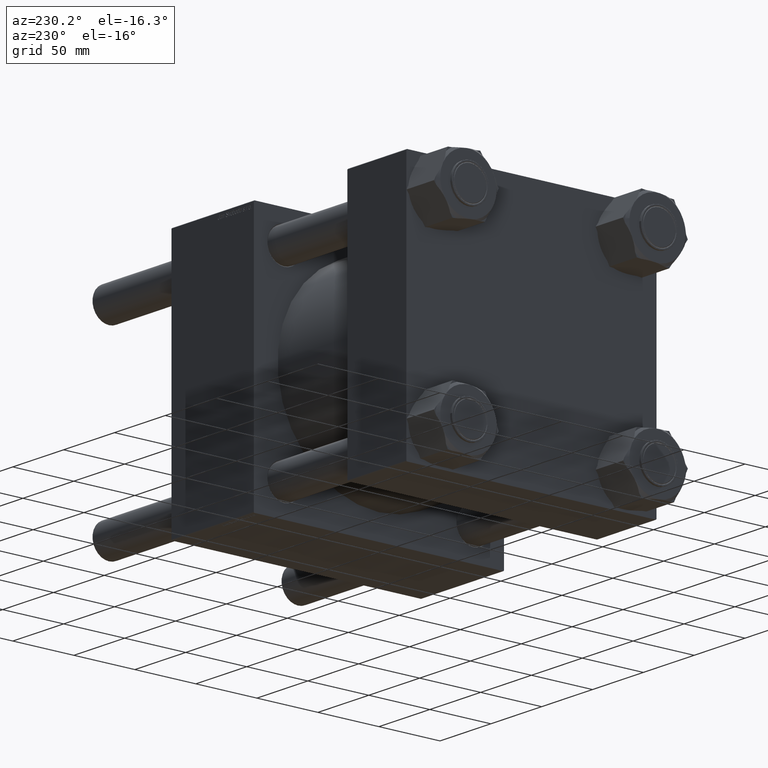
[diagram: clean part render]
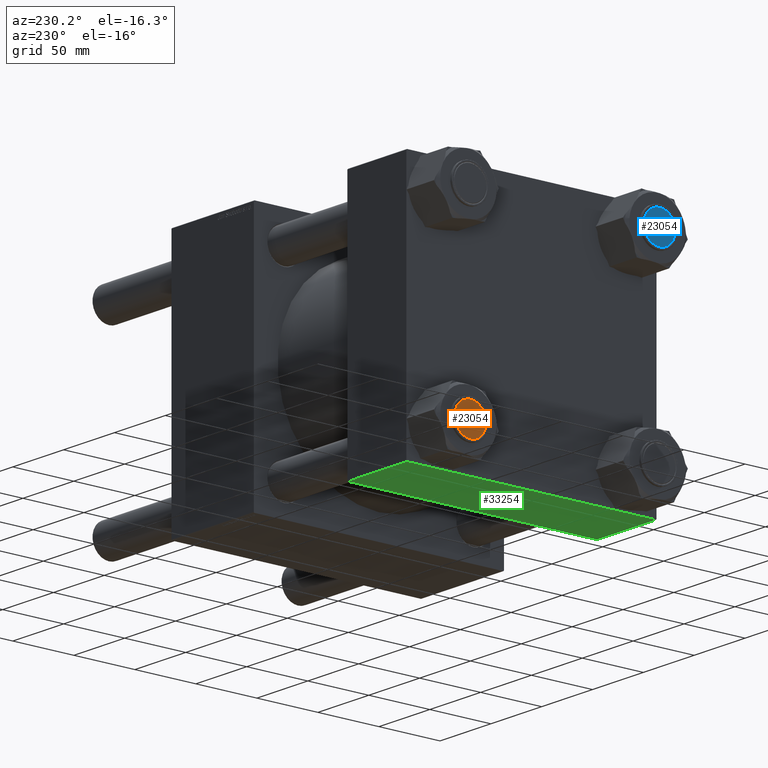
[diagram: same view with three faces highlighted in distinct colors, each labeled with its STEP entity id]
A machine part, auxiliary view with three faces highlighted in distinct colors.
Their STEP definitions:

[orange] entity #23054 — the highlighted planar face has unit normal (1, 0, 0).
#350 = DIRECTION ( 'NONE',  ( 1.000000000000000000, 0.000000000000000000, -0.000000000000000000 ) ) ;
#3381 = CIRCLE ( 'NONE', #18232, 12.99999999999998224 ) ;
#8683 = EDGE_CURVE ( 'NONE', #41803, #36513, #40942, .T. ) ;
#10916 = CARTESIAN_POINT ( 'NONE',  ( 12.99999999999998224, 0.000000000000000000, 0.000000000000000000 ) ) ;
#14006 = DIRECTION ( 'NONE',  ( 0.000000000000000000, 0.000000000000000000, 1.000000000000000000 ) ) ;
#16567 = CARTESIAN_POINT ( 'NONE',  ( 0.000000000000000000, 0.000000000000000000, 0.000000000000000000 ) ) ;
#18232 = AXIS2_PLACEMENT_3D ( 'NONE', #16567, #56299, #55712 ) ;
#23054 = ADVANCED_FACE ( 'NONE', ( #40126 ), #27063, .F. ) ;
#27063 = PLANE ( 'NONE',  #33015 ) ;
#27280 = ORIENTED_EDGE ( 'NONE', *, *, #29040, .T. ) ;
#28641 = DIRECTION ( 'NONE',  ( -0.000000000000000000, -0.000000000000000000, -1.000000000000000000 ) ) ;
#29009 = CARTESIAN_POINT ( 'NONE',  ( -12.99999999999998224, 1.622657008870241896E-15, 0.000000000000000000 ) ) ;
#29040 = EDGE_CURVE ( 'NONE', #36513, #41803, #3381, .T. ) ;
#30749 = AXIS2_PLACEMENT_3D ( 'NONE', #32431, #28641, #40857 ) ;
#32431 = CARTESIAN_POINT ( 'NONE',  ( 0.000000000000000000, 0.000000000000000000, 0.000000000000000000 ) ) ;
#33015 = AXIS2_PLACEMENT_3D ( 'NONE', #53713, #14006, #350 ) ;
#36513 = VERTEX_POINT ( 'NONE', #29009 ) ;
#40126 = FACE_OUTER_BOUND ( 'NONE', #41942, .T. ) ;
#40857 = DIRECTION ( 'NONE',  ( 1.000000000000000000, 0.000000000000000000, 0.000000000000000000 ) ) ;
#40942 = CIRCLE ( 'NONE', #30749, 12.99999999999998224 ) ;
#41803 = VERTEX_POINT ( 'NONE', #10916 ) ;
#41942 = EDGE_LOOP ( 'NONE', ( #50808, #27280 ) ) ;
#50808 = ORIENTED_EDGE ( 'NONE', *, *, #8683, .T. ) ;
#53713 = CARTESIAN_POINT ( 'NONE',  ( 0.000000000000000000, 0.000000000000000000, 0.000000000000000000 ) ) ;
#55712 = DIRECTION ( 'NONE',  ( 1.000000000000000000, 0.000000000000000000, 0.000000000000000000 ) ) ;
#56299 = DIRECTION ( 'NONE',  ( -0.000000000000000000, -0.000000000000000000, -1.000000000000000000 ) ) ;

[blue] entity #23054 — the highlighted planar face has unit normal (1, 0, 0).
#350 = DIRECTION ( 'NONE',  ( 1.000000000000000000, 0.000000000000000000, -0.000000000000000000 ) ) ;
#3381 = CIRCLE ( 'NONE', #18232, 12.99999999999998224 ) ;
#8683 = EDGE_CURVE ( 'NONE', #41803, #36513, #40942, .T. ) ;
#10916 = CARTESIAN_POINT ( 'NONE',  ( 12.99999999999998224, 0.000000000000000000, 0.000000000000000000 ) ) ;
#14006 = DIRECTION ( 'NONE',  ( 0.000000000000000000, 0.000000000000000000, 1.000000000000000000 ) ) ;
#16567 = CARTESIAN_POINT ( 'NONE',  ( 0.000000000000000000, 0.000000000000000000, 0.000000000000000000 ) ) ;
#18232 = AXIS2_PLACEMENT_3D ( 'NONE', #16567, #56299, #55712 ) ;
#23054 = ADVANCED_FACE ( 'NONE', ( #40126 ), #27063, .F. ) ;
#27063 = PLANE ( 'NONE',  #33015 ) ;
#27280 = ORIENTED_EDGE ( 'NONE', *, *, #29040, .T. ) ;
#28641 = DIRECTION ( 'NONE',  ( -0.000000000000000000, -0.000000000000000000, -1.000000000000000000 ) ) ;
#29009 = CARTESIAN_POINT ( 'NONE',  ( -12.99999999999998224, 1.622657008870241896E-15, 0.000000000000000000 ) ) ;
#29040 = EDGE_CURVE ( 'NONE', #36513, #41803, #3381, .T. ) ;
#30749 = AXIS2_PLACEMENT_3D ( 'NONE', #32431, #28641, #40857 ) ;
#32431 = CARTESIAN_POINT ( 'NONE',  ( 0.000000000000000000, 0.000000000000000000, 0.000000000000000000 ) ) ;
#33015 = AXIS2_PLACEMENT_3D ( 'NONE', #53713, #14006, #350 ) ;
#36513 = VERTEX_POINT ( 'NONE', #29009 ) ;
#40126 = FACE_OUTER_BOUND ( 'NONE', #41942, .T. ) ;
#40857 = DIRECTION ( 'NONE',  ( 1.000000000000000000, 0.000000000000000000, 0.000000000000000000 ) ) ;
#40942 = CIRCLE ( 'NONE', #30749, 12.99999999999998224 ) ;
#41803 = VERTEX_POINT ( 'NONE', #10916 ) ;
#41942 = EDGE_LOOP ( 'NONE', ( #50808, #27280 ) ) ;
#50808 = ORIENTED_EDGE ( 'NONE', *, *, #8683, .T. ) ;
#53713 = CARTESIAN_POINT ( 'NONE',  ( 0.000000000000000000, 0.000000000000000000, 0.000000000000000000 ) ) ;
#55712 = DIRECTION ( 'NONE',  ( 1.000000000000000000, 0.000000000000000000, 0.000000000000000000 ) ) ;
#56299 = DIRECTION ( 'NONE',  ( -0.000000000000000000, -0.000000000000000000, -1.000000000000000000 ) ) ;

[green] entity #33254 — the highlighted planar face has unit normal (0, 0, -1).
#267 = EDGE_CURVE ( 'NONE', #44230, #14580, #22269, .T. ) ;
#549 = PLANE ( 'NONE',  #4483 ) ;
#2853 = LINE ( 'NONE', #17579, #54943 ) ;
#3529 = VERTEX_POINT ( 'NONE', #50518 ) ;
#3888 = EDGE_CURVE ( 'NONE', #14580, #3529, #34776, .T. ) ;
#4483 = AXIS2_PLACEMENT_3D ( 'NONE', #35685, #54212, #31898 ) ;
#4971 = ORIENTED_EDGE ( 'NONE', *, *, #13859, .F. ) ;
#8080 = CARTESIAN_POINT ( 'NONE',  ( 58.00000000000000000, 102.0000000000000142, -102.4999999999999716 ) ) ;
#9415 = CARTESIAN_POINT ( 'NONE',  ( 58.00000000000000000, 102.0000000000000142, -102.4999999999999716 ) ) ;
#12702 = EDGE_CURVE ( 'NONE', #3529, #45197, #2853, .T. ) ;
#13859 = EDGE_CURVE ( 'NONE', #44230, #45197, #17547, .T. ) ;
#14580 = VERTEX_POINT ( 'NONE', #9415 ) ;
#17547 = LINE ( 'NONE', #26824, #20708 ) ;
#17579 = CARTESIAN_POINT ( 'NONE',  ( 0.000000000000000000, -101.9999999999999432, -102.5000000000000000 ) ) ;
#19044 = CARTESIAN_POINT ( 'NONE',  ( 0.000000000000000000, -101.9999999999999432, -102.5000000000000000 ) ) ;
#20708 = VECTOR ( 'NONE', #53758, 1000.000000000000000 ) ;
#21936 = DIRECTION ( 'NONE',  ( -1.000000000000000000, 0.000000000000000000, 0.000000000000000000 ) ) ;
#22269 = LINE ( 'NONE', #8080, #47287 ) ;
#26824 = CARTESIAN_POINT ( 'NONE',  ( 0.000000000000000000, 102.5000000000000284, -102.4999999999999716 ) ) ;
#30141 = CARTESIAN_POINT ( 'NONE',  ( 58.00000000000000000, 102.5000000000000284, -102.4999999999999716 ) ) ;
#30595 = VECTOR ( 'NONE', #47830, 1000.000000000000000 ) ;
#31267 = DIRECTION ( 'NONE',  ( 1.000000000000000000, 0.000000000000000000, 0.000000000000000000 ) ) ;
#31898 = DIRECTION ( 'NONE',  ( 0.000000000000000000, 1.000000000000000000, 1.353930517835556973E-16 ) ) ;
#32186 = FACE_OUTER_BOUND ( 'NONE', #49868, .T. ) ;
#33254 = ADVANCED_FACE ( 'NONE', ( #32186 ), #549, .T. ) ;
#34131 = ORIENTED_EDGE ( 'NONE', *, *, #267, .T. ) ;
#34776 = LINE ( 'NONE', #30141, #30595 ) ;
#35685 = CARTESIAN_POINT ( 'NONE',  ( 58.00000000000000000, 102.5000000000000284, -102.4999999999999716 ) ) ;
#37828 = CARTESIAN_POINT ( 'NONE',  ( 0.000000000000000000, 102.0000000000000142, -102.4999999999999716 ) ) ;
#44230 = VERTEX_POINT ( 'NONE', #37828 ) ;
#45197 = VERTEX_POINT ( 'NONE', #19044 ) ;
#46204 = ORIENTED_EDGE ( 'NONE', *, *, #12702, .T. ) ;
#47287 = VECTOR ( 'NONE', #31267, 1000.000000000000000 ) ;
#47830 = DIRECTION ( 'NONE',  ( 0.000000000000000000, -1.000000000000000000, -1.353930517835556727E-16 ) ) ;
#49868 = EDGE_LOOP ( 'NONE', ( #4971, #34131, #51122, #46204 ) ) ;
#50518 = CARTESIAN_POINT ( 'NONE',  ( 58.00000000000000000, -101.9999999999999432, -102.5000000000000000 ) ) ;
#51122 = ORIENTED_EDGE ( 'NONE', *, *, #3888, .T. ) ;
#53758 = DIRECTION ( 'NONE',  ( 0.000000000000000000, -1.000000000000000000, -1.353930517835556727E-16 ) ) ;
#54212 = DIRECTION ( 'NONE',  ( 0.000000000000000000, 1.353930517835556973E-16, -1.000000000000000000 ) ) ;
#54943 = VECTOR ( 'NONE', #21936, 1000.000000000000000 ) ;